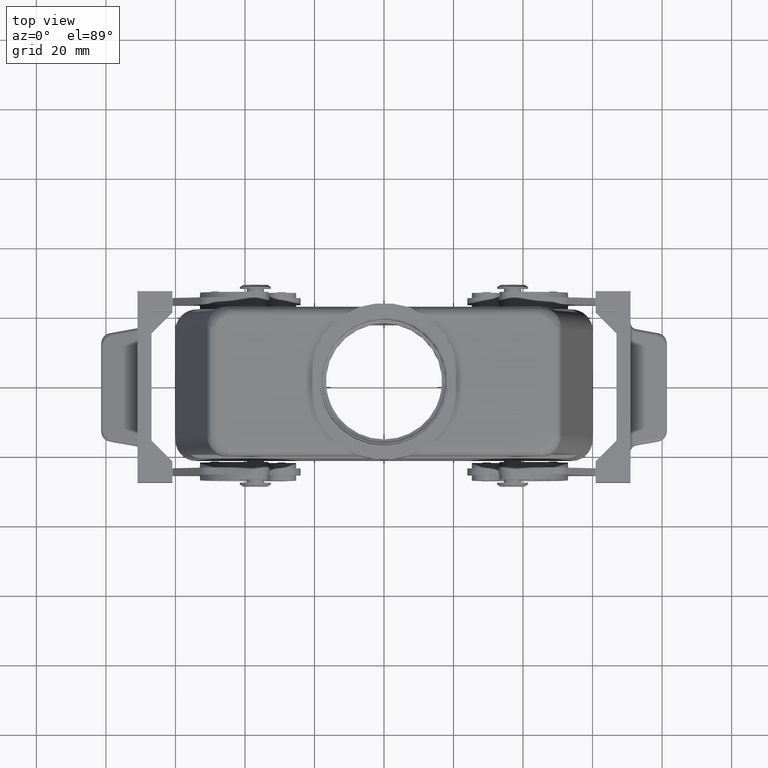
[diagram: clean part render]
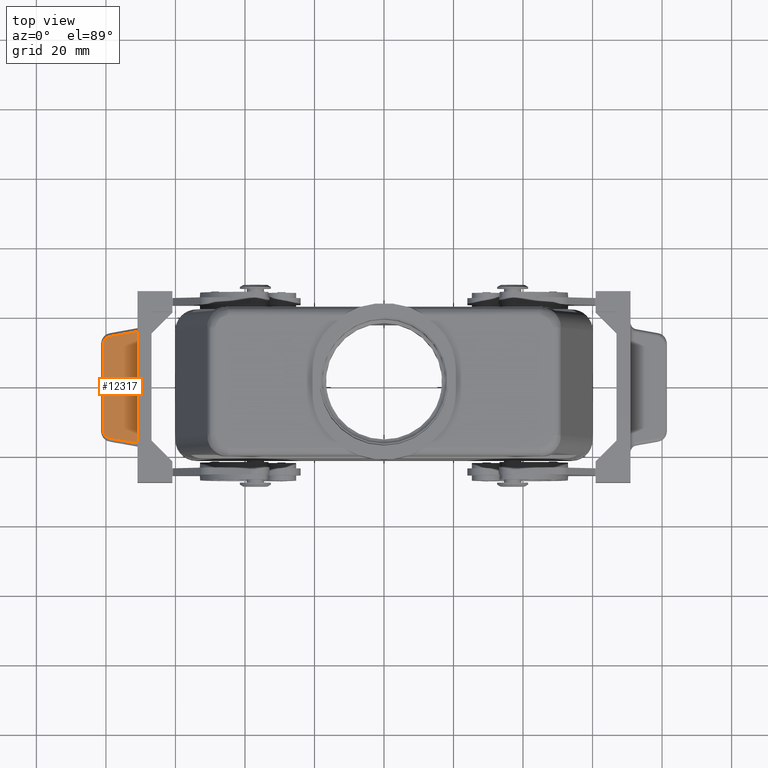
[diagram: same view with one face highlighted and labeled with its STEP entity id]
A machine part, top view. The second image highlights one B-rep face of the part: STEP entity #12317.
In plain terms, the highlighted face is a freeform B-spline surface patch.
Its self-contained STEP definition (entity closure, byte-faithful):
#8018=CARTESIAN_POINT('',(-80.681276492103891,-12.605495354829092,-19.200762841736864));
#8019=VERTEX_POINT('',#8018);
#8027=CARTESIAN_POINT('',(-80.681276492103891,12.605495354829088,-19.200762841736864));
#8028=VERTEX_POINT('',#8027);
#8029=CARTESIAN_POINT('',(-80.681276492103891,-12.605495354829092,-19.200762841736864));
#8030=DIRECTION('',(0.0,1.0,0.0));
#8031=VECTOR('',#8030,25.210990709658180);
#8032=LINE('',#8029,#8031);
#8033=EDGE_CURVE('',#8019,#8028,#8032,.T.);
#12121=CARTESIAN_POINT('',(-79.085586908319314,-14.579651353692210,-18.727540654906189));
#12122=VERTEX_POINT('',#12121);
#12130=CARTESIAN_POINT('',(-78.763819519897922,-12.605495354829090,-18.632116414034464));
#12131=DIRECTION('',(0.284323213851201,6.310887E-030,-0.958728486102986));
#12132=DIRECTION('',(1.726182E-013,-1.0,5.119215E-014));
#12133=AXIS2_PLACEMENT_3D('',#12130,#12131,#12132);
#12134=ELLIPSE('',#12133,2.002553303570501,2.000000000000000);
#12135=EDGE_CURVE('',#12122,#8019,#12134,.T.);
#12162=CARTESIAN_POINT('',(-70.900000000000006,-16.034866804060091,-16.300000000000001));
#12163=VERTEX_POINT('',#12162);
#12171=CARTESIAN_POINT('',(-70.900000000000006,-16.034866804060091,-16.300000000000001));
#12172=DIRECTION('',(-0.945099192195921,0.168017634168164,-0.280281272152013));
#12173=VECTOR('',#12172,8.661087614835692);
#12174=LINE('',#12171,#12173);
#12175=EDGE_CURVE('',#12163,#12122,#12174,.T.);
#12250=CARTESIAN_POINT('',(-79.085586908319328,14.579651353692206,-18.727540654906200));
#12251=VERTEX_POINT('',#12250);
#12264=CARTESIAN_POINT('',(-78.763819519897936,12.605495354829088,-18.632116414034467));
#12265=DIRECTION('',(0.284323213851201,0.0,-0.958728486102986));
#12266=DIRECTION('',(1.029674E-013,1.0,3.053631E-014));
#12267=AXIS2_PLACEMENT_3D('',#12264,#12265,#12266);
#12268=ELLIPSE('',#12267,2.002553303570501,2.0);
#12269=EDGE_CURVE('',#8028,#12251,#12268,.T.);
#12281=CARTESIAN_POINT('',(-70.900000000000006,16.034866804060083,-16.300000000000001));
#12282=VERTEX_POINT('',#12281);
#12283=CARTESIAN_POINT('',(-79.085586908319328,14.579651353692206,-18.727540654906200));
#12284=DIRECTION('',(0.945099192195921,0.168017634168163,0.280281272152013));
#12285=VECTOR('',#12284,8.661087614835708);
#12286=LINE('',#12283,#12285);
#12287=EDGE_CURVE('',#12251,#12282,#12286,.T.);
#12299=CARTESIAN_POINT('',(-70.900000000000006,16.034866804060087,-16.300000000000001));
#12300=CARTESIAN_POINT('',(-80.681276492103905,16.034866804060087,-19.200762841736868));
#12301=CARTESIAN_POINT('',(-70.900000000000006,-16.034866804060087,-16.300000000000001));
#12302=CARTESIAN_POINT('',(-80.681276492103905,-16.034866804060087,-19.200762841736871));
#12303=B_SPLINE_SURFACE_WITH_KNOTS('',1,1,((#12299,#12301),(#12300,#12302)),.UNSPECIFIED.,.F.,.F.,.U.,(2,2),(2,2),(0.0,10.202342617212270),(0.0,32.069733608120174),.UNSPECIFIED.);
#12304=ORIENTED_EDGE('',*,*,#12287,.F.);
#12305=ORIENTED_EDGE('',*,*,#12269,.F.);
#12306=ORIENTED_EDGE('',*,*,#8033,.F.);
#12307=ORIENTED_EDGE('',*,*,#12135,.F.);
#12308=ORIENTED_EDGE('',*,*,#12175,.F.);
#12309=CARTESIAN_POINT('',(-70.900000000000006,16.034866804060083,-16.300000000000001));
#12310=DIRECTION('',(0.0,-1.0,0.0));
#12311=VECTOR('',#12310,32.069733608120174);
#12312=LINE('',#12309,#12311);
#12313=EDGE_CURVE('',#12282,#12163,#12312,.T.);
#12314=ORIENTED_EDGE('',*,*,#12313,.F.);
#12315=EDGE_LOOP('',(#12304,#12305,#12306,#12307,#12308,#12314));
#12316=FACE_OUTER_BOUND('',#12315,.T.);
#12317=ADVANCED_FACE('',(#12316),#12303,.T.);